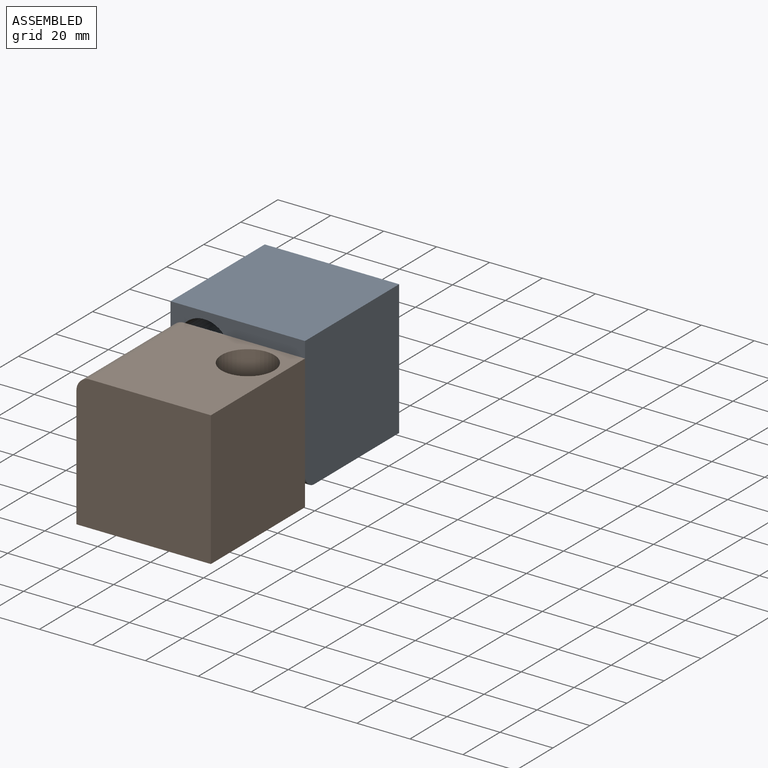
[diagram: assembled view]
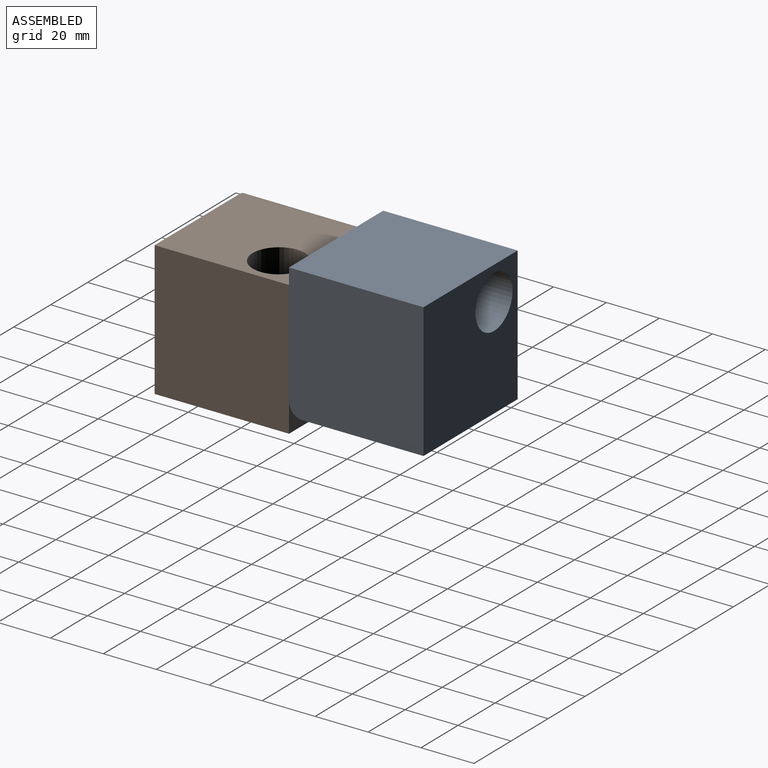
[diagram: assembled view, second angle]
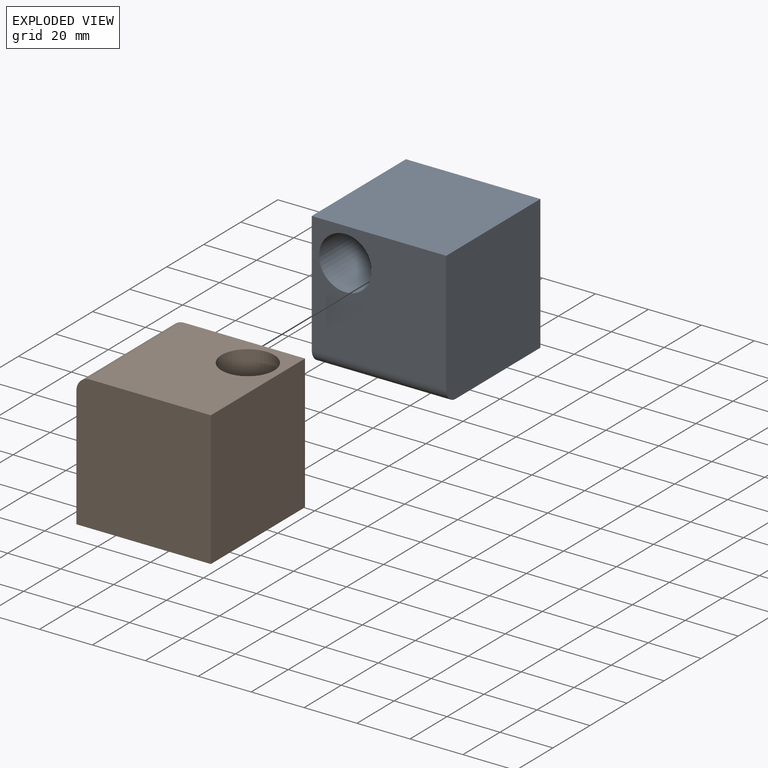
[diagram: exploded view]
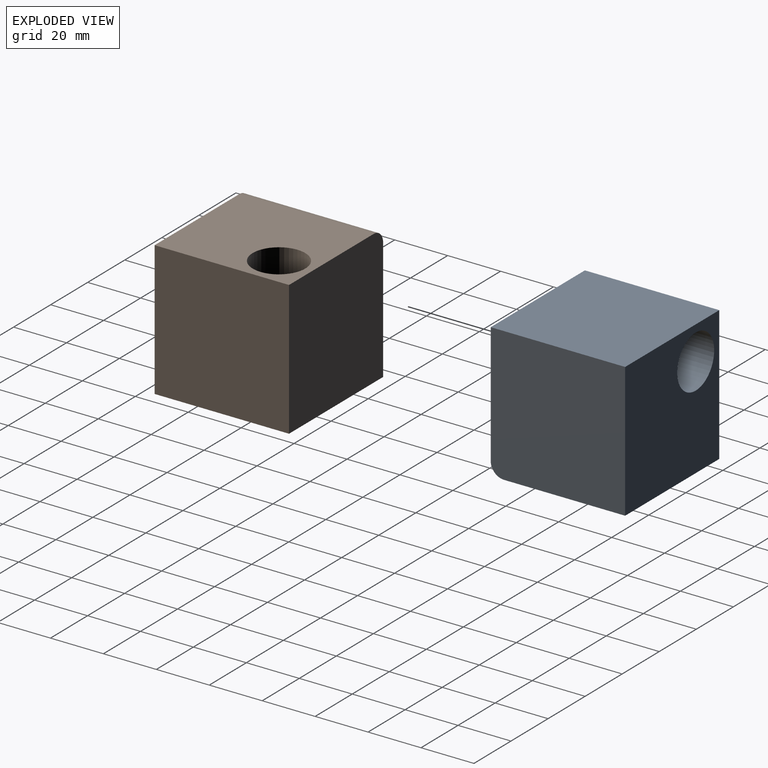
[diagram: exploded view, second angle]
ASSEMBLY  parts=2 mates=2
PART A: 8 faces, bbox 50.8x50.8x50.8 mm
  f0: plane 50.8x50.8mm, normal (0,0,1), area 2580.6mm2, adj f1,f4,f5,f6
  f1: plane 50.8x50.8mm, normal (-1,0,0), area 2575.1mm2, adj f0,f2,f5,f6,f7
  f2: plane 50.8x45.72mm, normal (0,0,-1), area 2322.6mm2, adj f1,f4,f6,f7
  f3: cylinder r=9.95mm len=50.8mm, axis (0,1,0), area 3174.3mm2, adj f5,f6
  f4: plane 50.8x50.8mm, normal (1,0,0), area 2575.1mm2, adj f0,f2,f5,f6,f7
  f5: plane 50.8x45.72mm, normal (0,-1,0), area 2011.9mm2, adj f0,f1,f3,f4,f7
  f6: plane 50.8x50.8mm, normal (0,1,0), area 2269.9mm2, adj f0,f1,f2,f3,f4
  f7: cylinder r=5.08mm len=50.8mm, axis (-1,0,0), area 405.4mm2, adj f1,f2,f4,f5
PART B: same geometry as A
PLACE A t=(-18,7.81,14.4)mm
PLACE B rot(axis=(-0.58,0.58,-0.58),120deg) t=(-29.64,-77.38,-14.31)mm
MATE planar A.f1 <-> B.f2  axis (-1,0,0) through (-52.39,-17.54,17.11)mm
MATE planar B.f1 <-> A.f5  axis (0,1,0) through (-26.94,-42.99,11.03)mm
